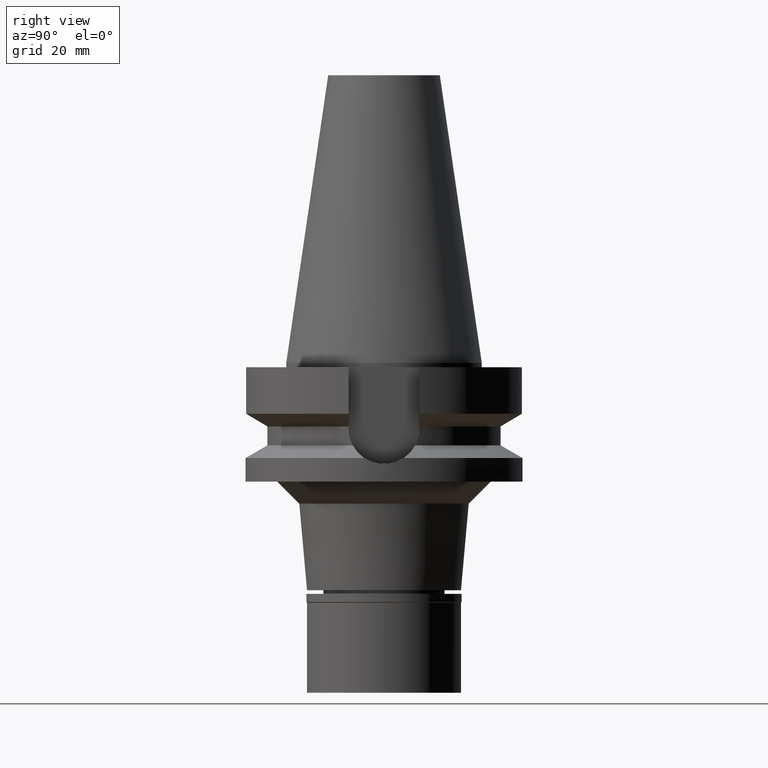
[diagram: clean part render]
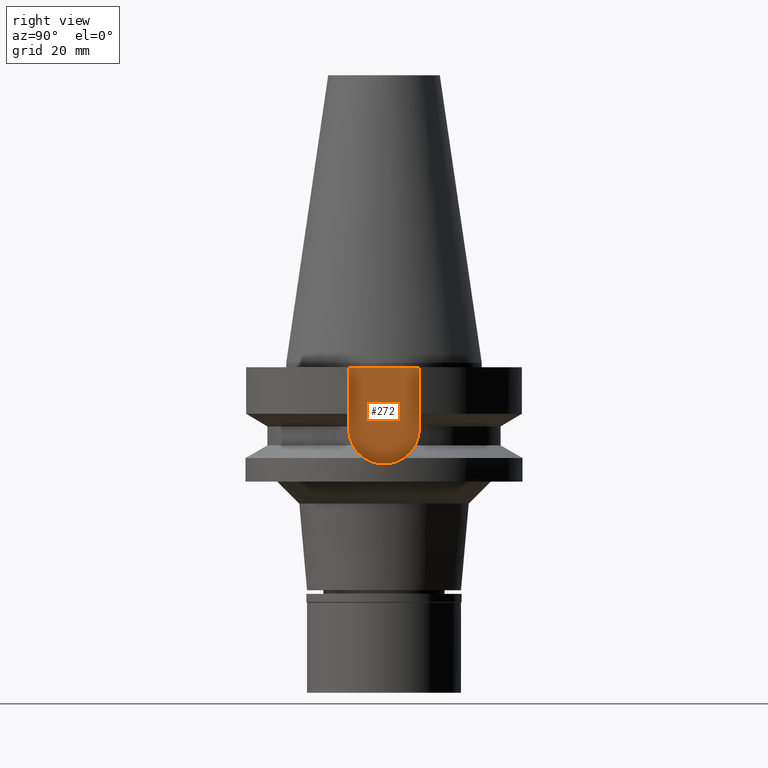
[diagram: same view with one face highlighted and labeled with its STEP entity id]
A machine part, right view. The second image highlights one B-rep face of the part: STEP entity #272.
In plain terms, the highlighted planar face has unit normal (1, 0, 0).
Its self-contained STEP definition (entity closure, byte-faithful):
#272 = ADVANCED_FACE ( 'NONE', ( #1790 ), #2243, .T. ) ;
#357 = DIRECTION ( 'NONE',  ( 0.0000000000000000000, 0.0000000000000000000, -1.000000000000000000 ) ) ;
#378 = ORIENTED_EDGE ( 'NONE', *, *, #1272, .T. ) ;
#481 = AXIS2_PLACEMENT_3D ( 'NONE', #1279, #1307, #1084 ) ;
#531 = LINE ( 'NONE', #1929, #2397 ) ;
#596 = CARTESIAN_POINT ( 'NONE',  ( 22.50000000000000000, 8.050000000000000711, -1.000000000000000000 ) ) ;
#601 = EDGE_CURVE ( 'NONE', #2851, #1239, #531, .T. ) ;
#644 = ORIENTED_EDGE ( 'NONE', *, *, #601, .F. ) ;
#684 = AXIS2_PLACEMENT_3D ( 'NONE', #1108, #1973, #357 ) ;
#810 = LINE ( 'NONE', #1738, #1334 ) ;
#820 = DIRECTION ( 'NONE',  ( 0.0000000000000000000, -1.000000000000000000, 0.0000000000000000000 ) ) ;
#1084 = DIRECTION ( 'NONE',  ( 0.0000000000000000000, 1.000000000000000000, 0.0000000000000000000 ) ) ;
#1094 = DIRECTION ( 'NONE',  ( 0.0000000000000000000, 0.0000000000000000000, -1.000000000000000000 ) ) ;
#1106 = EDGE_LOOP ( 'NONE', ( #644, #1309, #1508, #378 ) ) ;
#1108 = CARTESIAN_POINT ( 'NONE',  ( 22.50000000000000000, 0.0000000000000000000, -14.94999999999999929 ) ) ;
#1239 = VERTEX_POINT ( 'NONE', #1927 ) ;
#1272 = EDGE_CURVE ( 'NONE', #2466, #1239, #1815, .T. ) ;
#1279 = CARTESIAN_POINT ( 'NONE',  ( 22.50000000000000000, 0.0000000000000000000, 0.0000000000000000000 ) ) ;
#1307 = DIRECTION ( 'NONE',  ( 1.000000000000000000, 0.0000000000000000000, 0.0000000000000000000 ) ) ;
#1309 = ORIENTED_EDGE ( 'NONE', *, *, #2583, .F. ) ;
#1334 = VECTOR ( 'NONE', #1094, 1000.000000000000000 ) ;
#1508 = ORIENTED_EDGE ( 'NONE', *, *, #2683, .F. ) ;
#1738 = CARTESIAN_POINT ( 'NONE',  ( 22.50000000000000000, 8.050000000000000711, -1.000000000000000000 ) ) ;
#1790 = FACE_OUTER_BOUND ( 'NONE', #1106, .T. ) ;
#1810 = VECTOR ( 'NONE', #820, 1000.000000000000000 ) ;
#1815 = LINE ( 'NONE', #596, #1810 ) ;
#1927 = CARTESIAN_POINT ( 'NONE',  ( 22.50000000000000000, -8.050000000000000711, -1.000000000000000000 ) ) ;
#1929 = CARTESIAN_POINT ( 'NONE',  ( 22.50000000000000000, -8.050000000000000711, -14.94999999999999929 ) ) ;
#1973 = DIRECTION ( 'NONE',  ( -1.000000000000000000, 0.0000000000000000000, 0.0000000000000000000 ) ) ;
#2243 = PLANE ( 'NONE',  #481 ) ;
#2397 = VECTOR ( 'NONE', #2904, 1000.000000000000000 ) ;
#2466 = VERTEX_POINT ( 'NONE', #2538 ) ;
#2538 = CARTESIAN_POINT ( 'NONE',  ( 22.50000000000000000, 8.050000000000000711, -1.000000000000000000 ) ) ;
#2583 = EDGE_CURVE ( 'NONE', #2730, #2851, #2845, .T. ) ;
#2683 = EDGE_CURVE ( 'NONE', #2466, #2730, #810, .T. ) ;
#2699 = CARTESIAN_POINT ( 'NONE',  ( 22.50000000000000000, 8.050000000000000711, -14.94999999999999929 ) ) ;
#2730 = VERTEX_POINT ( 'NONE', #2699 ) ;
#2801 = CARTESIAN_POINT ( 'NONE',  ( 22.50000000000000000, -8.050000000000000711, -14.94999999999999929 ) ) ;
#2845 = CIRCLE ( 'NONE', #684, 8.050000000000000711 ) ;
#2851 = VERTEX_POINT ( 'NONE', #2801 ) ;
#2904 = DIRECTION ( 'NONE',  ( 0.0000000000000000000, 0.0000000000000000000, 1.000000000000000000 ) ) ;